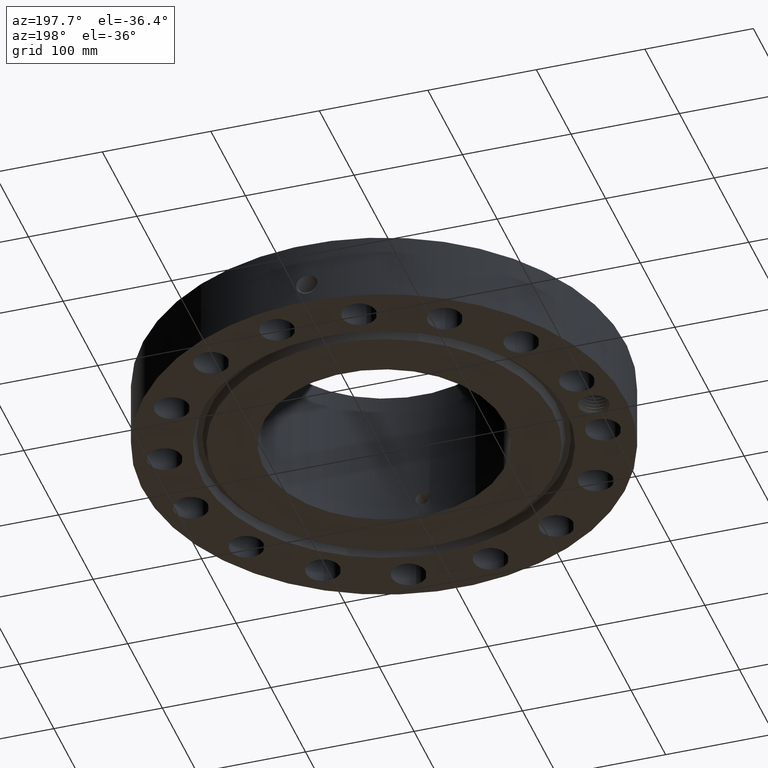
[diagram: clean part render]
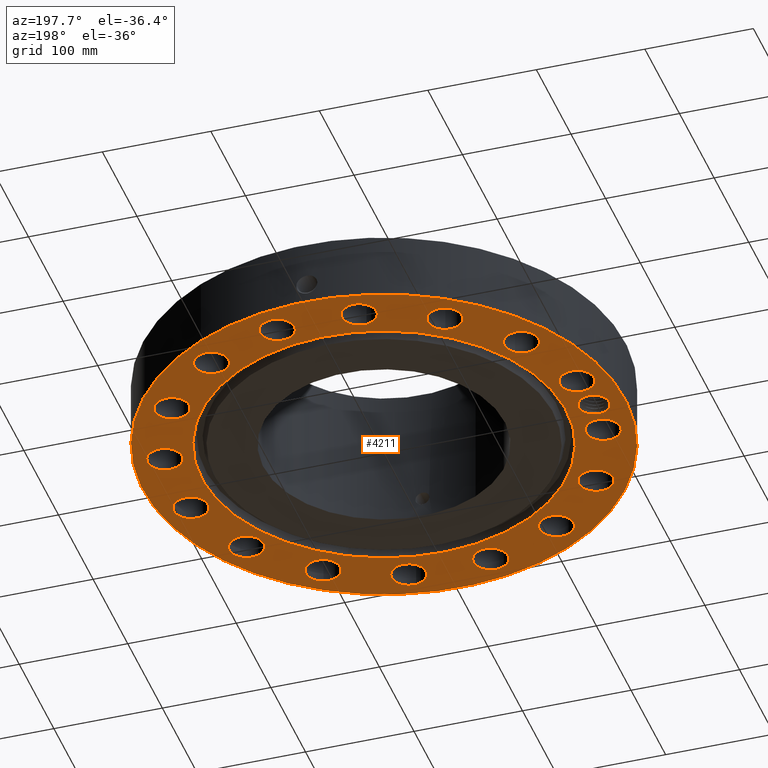
[diagram: same view with one face highlighted and labeled with its STEP entity id]
A machine part, auxiliary view. The second image highlights one B-rep face of the part: STEP entity #4211.
In plain terms, the highlighted planar face has unit normal (0, 0, -1).
Its self-contained STEP definition (entity closure, byte-faithful):
#598=AXIS2_PLACEMENT_3D('Plane Axis2P3D',#595,#596,#597) ;
#3275=AXIS2_PLACEMENT_3D('Circle Axis2P3D',#3273,#3274,$) ;
#3301=AXIS2_PLACEMENT_3D('Circle Axis2P3D',#3299,#3300,$) ;
#3849=AXIS2_PLACEMENT_3D('Circle Axis2P3D',#3847,#3848,$) ;
#3858=AXIS2_PLACEMENT_3D('Circle Axis2P3D',#3856,#3857,$) ;
#3867=AXIS2_PLACEMENT_3D('Circle Axis2P3D',#3865,#3866,$) ;
#3876=AXIS2_PLACEMENT_3D('Circle Axis2P3D',#3874,#3875,$) ;
#3921=AXIS2_PLACEMENT_3D('Circle Axis2P3D',#3919,#3920,$) ;
#3930=AXIS2_PLACEMENT_3D('Circle Axis2P3D',#3928,#3929,$) ;
#3939=AXIS2_PLACEMENT_3D('Circle Axis2P3D',#3937,#3938,$) ;
#3948=AXIS2_PLACEMENT_3D('Circle Axis2P3D',#3946,#3947,$) ;
#3957=AXIS2_PLACEMENT_3D('Circle Axis2P3D',#3955,#3956,$) ;
#3966=AXIS2_PLACEMENT_3D('Circle Axis2P3D',#3964,#3965,$) ;
#3975=AXIS2_PLACEMENT_3D('Circle Axis2P3D',#3973,#3974,$) ;
#3984=AXIS2_PLACEMENT_3D('Circle Axis2P3D',#3982,#3983,$) ;
#3993=AXIS2_PLACEMENT_3D('Circle Axis2P3D',#3991,#3992,$) ;
#4002=AXIS2_PLACEMENT_3D('Circle Axis2P3D',#4000,#4001,$) ;
#4011=AXIS2_PLACEMENT_3D('Circle Axis2P3D',#4009,#4010,$) ;
#4020=AXIS2_PLACEMENT_3D('Circle Axis2P3D',#4018,#4019,$) ;
#4029=AXIS2_PLACEMENT_3D('Circle Axis2P3D',#4027,#4028,$) ;
#4038=AXIS2_PLACEMENT_3D('Circle Axis2P3D',#4036,#4037,$) ;
#4047=AXIS2_PLACEMENT_3D('Circle Axis2P3D',#4045,#4046,$) ;
#4056=AXIS2_PLACEMENT_3D('Circle Axis2P3D',#4054,#4055,$) ;
#4065=AXIS2_PLACEMENT_3D('Circle Axis2P3D',#4063,#4064,$) ;
#4074=AXIS2_PLACEMENT_3D('Circle Axis2P3D',#4072,#4073,$) ;
#4083=AXIS2_PLACEMENT_3D('Circle Axis2P3D',#4081,#4082,$) ;
#4092=AXIS2_PLACEMENT_3D('Circle Axis2P3D',#4090,#4091,$) ;
#4101=AXIS2_PLACEMENT_3D('Circle Axis2P3D',#4099,#4100,$) ;
#4110=AXIS2_PLACEMENT_3D('Circle Axis2P3D',#4108,#4109,$) ;
#4119=AXIS2_PLACEMENT_3D('Circle Axis2P3D',#4117,#4118,$) ;
#4128=AXIS2_PLACEMENT_3D('Circle Axis2P3D',#4126,#4127,$) ;
#4137=AXIS2_PLACEMENT_3D('Circle Axis2P3D',#4135,#4136,$) ;
#4146=AXIS2_PLACEMENT_3D('Circle Axis2P3D',#4144,#4145,$) ;
#4155=AXIS2_PLACEMENT_3D('Circle Axis2P3D',#4153,#4154,$) ;
#4164=AXIS2_PLACEMENT_3D('Circle Axis2P3D',#4162,#4163,$) ;
#4173=AXIS2_PLACEMENT_3D('Circle Axis2P3D',#4171,#4172,$) ;
#4182=AXIS2_PLACEMENT_3D('Circle Axis2P3D',#4180,#4181,$) ;
#4191=AXIS2_PLACEMENT_3D('Circle Axis2P3D',#4189,#4190,$) ;
#4200=AXIS2_PLACEMENT_3D('Circle Axis2P3D',#4198,#4199,$) ;
#595=CARTESIAN_POINT('Axis2P3D Location',(0.,4.37500000002,0.)) ;
#3273=CARTESIAN_POINT('Axis2P3D Location',(0.,0.,0.)) ;
#3277=CARTESIAN_POINT('Vertex',(-3.16876309742,5.80038194284,0.)) ;
#3279=CARTESIAN_POINT('Vertex',(3.16876309742,-5.80038194284,0.)) ;
#3299=CARTESIAN_POINT('Axis2P3D Location',(0.,0.,0.)) ;
#3847=CARTESIAN_POINT('Axis2P3D Location',(0.,0.,0.)) ;
#3851=CARTESIAN_POINT('Vertex',(-4.1949734628,-7.67884741657,5.59482469102E-016)) ;
#3853=CARTESIAN_POINT('Vertex',(4.1949734628,7.67884741657,5.59482469102E-016)) ;
#3856=CARTESIAN_POINT('Axis2P3D Location',(0.,0.,0.)) ;
#3865=CARTESIAN_POINT('Axis2P3D Location',(-7.62500000003,-1.1189649382E-015,0.)) ;
#3869=CARTESIAN_POINT('Vertex',(-8.10960109071,0.264738782418,0.)) ;
#3871=CARTESIAN_POINT('Vertex',(-7.10347520258,0.181484780749,0.)) ;
#3874=CARTESIAN_POINT('Axis2P3D Location',(-7.62500000003,-1.1189649382E-015,0.)) ;
#3878=CARTESIAN_POINT('Vertex',(-7.16095699738,-0.299314102055,0.)) ;
#3882=CARTESIAN_POINT('Control Point',(-7.06645770177,-0.066619324831,0.)) ;
#3883=CARTESIAN_POINT('Control Point',(-7.07416557925,-0.114681631052,0.)) ;
#3884=CARTESIAN_POINT('Control Point',(-7.08705587024,-0.161797235867,0.)) ;
#3885=CARTESIAN_POINT('Control Point',(-7.1049895585,-0.207205787393,0.)) ;
#3886=CARTESIAN_POINT('Control Point',(-7.12870956018,-0.252179608873,0.)) ;
#3887=CARTESIAN_POINT('Control Point',(-7.15712673033,-0.293821482082,0.)) ;
#3888=CARTESIAN_POINT('Control Point',(-7.15839437758,-0.295659032487,0.)) ;
#3889=CARTESIAN_POINT('Control Point',(-7.15967114838,-0.297489925957,0.)) ;
#3890=CARTESIAN_POINT('Control Point',(-7.16095699738,-0.299314102055,0.)) ;
#3891=CARTESIAN_POINT('Vertex',(-7.06645770177,-0.0666193248303,8.74191357973E-018)) ;
#3895=CARTESIAN_POINT('Control Point',(-7.06645770177,-0.0666193248303,0.)) ;
#3896=CARTESIAN_POINT('Control Point',(-7.06541165184,-0.0532892877084,0.)) ;
#3897=CARTESIAN_POINT('Control Point',(-7.06476226065,-0.0399344907738,0.)) ;
#3898=CARTESIAN_POINT('Control Point',(-7.06451065516,-0.0265709294098,0.)) ;
#3899=CARTESIAN_POINT('Control Point',(-7.06465703212,-0.0132147927792,0.)) ;
#3900=CARTESIAN_POINT('Control Point',(-7.06520066568,0.000117592400793,0.)) ;
#3901=CARTESIAN_POINT('Vertex',(-7.06520066568,0.000117592400795,-8.74191357973E-018)) ;
#3905=CARTESIAN_POINT('Control Point',(-7.06520066568,0.000117592400795,0.)) ;
#3906=CARTESIAN_POINT('Control Point',(-7.066723145,0.0374557605854,0.)) ;
#3907=CARTESIAN_POINT('Control Point',(-7.07136135531,0.0746076307704,0.)) ;
#3908=CARTESIAN_POINT('Control Point',(-7.07909558712,0.111223558754,0.)) ;
#3909=CARTESIAN_POINT('Control Point',(-7.08984516472,0.146956936876,0.)) ;
#3910=CARTESIAN_POINT('Control Point',(-7.10347520258,0.181484780749,0.)) ;
#3919=CARTESIAN_POINT('Axis2P3D Location',(7.4784877631,-1.48756370538,0.)) ;
#3923=CARTESIAN_POINT('Vertex',(8.02697686429,-1.78720466701,2.79741234551E-016)) ;
#3925=CARTESIAN_POINT('Vertex',(6.92999866192,-1.18792274375,2.79741234551E-016)) ;
#3928=CARTESIAN_POINT('Axis2P3D Location',(7.4784877631,-1.48756370538,0.)) ;
#3937=CARTESIAN_POINT('Axis2P3D Location',(6.33995579383,-4.23622302679,0.)) ;
#3941=CARTESIAN_POINT('Vertex',(5.94788557112,-3.74949318338,0.)) ;
#3943=CARTESIAN_POINT('Vertex',(6.73202601655,-4.7229528702,2.79741234551E-016)) ;
#3946=CARTESIAN_POINT('Axis2P3D Location',(6.33995579383,-4.23622302679,0.)) ;
#3955=CARTESIAN_POINT('Axis2P3D Location',(4.23622302679,-6.33995579383,0.)) ;
#3959=CARTESIAN_POINT('Vertex',(4.06026081983,-5.74023727509,0.)) ;
#3961=CARTESIAN_POINT('Vertex',(4.41218523376,-6.93967431258,2.79741234551E-016)) ;
#3964=CARTESIAN_POINT('Axis2P3D Location',(4.23622302679,-6.33995579383,0.)) ;
#3973=CARTESIAN_POINT('Axis2P3D Location',(1.48756370538,-7.4784877631,0.)) ;
#3977=CARTESIAN_POINT('Vertex',(1.55449816507,-6.85708227704,0.)) ;
#3979=CARTESIAN_POINT('Vertex',(1.42062924568,-8.09989324917,2.79741234551E-016)) ;
#3982=CARTESIAN_POINT('Axis2P3D Location',(1.48756370538,-7.4784877631,0.)) ;
#3991=CARTESIAN_POINT('Axis2P3D Location',(-1.48756370538,-7.4784877631,0.)) ;
#3995=CARTESIAN_POINT('Vertex',(-1.18792274375,-6.92999866192,0.)) ;
#3997=CARTESIAN_POINT('Vertex',(-1.78720466701,-8.02697686429,2.79741234551E-016)) ;
#4000=CARTESIAN_POINT('Axis2P3D Location',(-1.48756370538,-7.4784877631,0.)) ;
#4009=CARTESIAN_POINT('Axis2P3D Location',(-4.23622302679,-6.33995579383,0.)) ;
#4013=CARTESIAN_POINT('Vertex',(-3.74949318338,-5.94788557112,0.)) ;
#4015=CARTESIAN_POINT('Vertex',(-4.7229528702,-6.73202601655,2.79741234551E-016)) ;
#4018=CARTESIAN_POINT('Axis2P3D Location',(-4.23622302679,-6.33995579383,0.)) ;
#4027=CARTESIAN_POINT('Axis2P3D Location',(-6.33995579383,-4.23622302679,0.)) ;
#4031=CARTESIAN_POINT('Vertex',(-5.74023727509,-4.06026081983,0.)) ;
#4033=CARTESIAN_POINT('Vertex',(-6.93967431258,-4.41218523376,2.79741234551E-016)) ;
#4036=CARTESIAN_POINT('Axis2P3D Location',(-6.33995579383,-4.23622302679,0.)) ;
#4045=CARTESIAN_POINT('Axis2P3D Location',(-7.4784877631,-1.48756370538,0.)) ;
#4049=CARTESIAN_POINT('Vertex',(-6.85708227704,-1.55449816507,0.)) ;
#4051=CARTESIAN_POINT('Vertex',(-8.09989324917,-1.42062924568,2.79741234551E-016)) ;
#4054=CARTESIAN_POINT('Axis2P3D Location',(-7.4784877631,-1.48756370538,0.)) ;
#4063=CARTESIAN_POINT('Axis2P3D Location',(-7.4784877631,1.48756370538,0.)) ;
#4067=CARTESIAN_POINT('Vertex',(-6.92999866192,1.18792274375,0.)) ;
#4069=CARTESIAN_POINT('Vertex',(-8.02697686429,1.78720466701,2.79741234551E-016)) ;
#4072=CARTESIAN_POINT('Axis2P3D Location',(-7.4784877631,1.48756370538,0.)) ;
#4081=CARTESIAN_POINT('Axis2P3D Location',(-6.33995579383,4.23622302679,0.)) ;
#4085=CARTESIAN_POINT('Vertex',(-5.94788557112,3.74949318338,0.)) ;
#4087=CARTESIAN_POINT('Vertex',(-6.73202601655,4.7229528702,2.79741234551E-016)) ;
#4090=CARTESIAN_POINT('Axis2P3D Location',(-6.33995579383,4.23622302679,0.)) ;
#4099=CARTESIAN_POINT('Axis2P3D Location',(-4.23622302679,6.33995579383,0.)) ;
#4103=CARTESIAN_POINT('Vertex',(-4.06026081983,5.74023727509,0.)) ;
#4105=CARTESIAN_POINT('Vertex',(-4.41218523376,6.93967431258,2.79741234551E-016)) ;
#4108=CARTESIAN_POINT('Axis2P3D Location',(-4.23622302679,6.33995579383,0.)) ;
#4117=CARTESIAN_POINT('Axis2P3D Location',(-1.48756370538,7.4784877631,0.)) ;
#4121=CARTESIAN_POINT('Vertex',(-1.55449816507,6.85708227704,0.)) ;
#4123=CARTESIAN_POINT('Vertex',(-1.42062924568,8.09989324917,2.79741234551E-016)) ;
#4126=CARTESIAN_POINT('Axis2P3D Location',(-1.48756370538,7.4784877631,0.)) ;
#4135=CARTESIAN_POINT('Axis2P3D Location',(1.48756370538,7.4784877631,0.)) ;
#4139=CARTESIAN_POINT('Vertex',(1.18792274375,6.92999866192,0.)) ;
#4141=CARTESIAN_POINT('Vertex',(1.78720466701,8.02697686429,2.79741234551E-016)) ;
#4144=CARTESIAN_POINT('Axis2P3D Location',(1.48756370538,7.4784877631,0.)) ;
#4153=CARTESIAN_POINT('Axis2P3D Location',(4.23622302679,6.33995579383,0.)) ;
#4157=CARTESIAN_POINT('Vertex',(3.74949318338,5.94788557112,0.)) ;
#4159=CARTESIAN_POINT('Vertex',(4.7229528702,6.73202601655,-1.95818864186E-015)) ;
#4162=CARTESIAN_POINT('Axis2P3D Location',(4.23622302679,6.33995579383,0.)) ;
#4171=CARTESIAN_POINT('Axis2P3D Location',(6.33995579383,4.23622302679,0.)) ;
#4175=CARTESIAN_POINT('Vertex',(5.74023727509,4.06026081983,0.)) ;
#4177=CARTESIAN_POINT('Vertex',(6.93967431258,4.41218523376,2.79741234551E-016)) ;
#4180=CARTESIAN_POINT('Axis2P3D Location',(6.33995579383,4.23622302679,0.)) ;
#4189=CARTESIAN_POINT('Axis2P3D Location',(7.4784877631,1.48756370538,0.)) ;
#4193=CARTESIAN_POINT('Vertex',(6.85708227704,1.55449816507,0.)) ;
#4195=CARTESIAN_POINT('Vertex',(8.09989324917,1.42062924568,2.79741234551E-016)) ;
#4198=CARTESIAN_POINT('Axis2P3D Location',(7.4784877631,1.48756370538,0.)) ;
#596=DIRECTION('Axis2P3D Direction',(0.,0.,-0.0393700787402)) ;
#597=DIRECTION('Axis2P3D XDirection',(0.0393700787402,0.,0.)) ;
#3274=DIRECTION('Axis2P3D Direction',(0.,0.,-0.0393700787402)) ;
#3300=DIRECTION('Axis2P3D Direction',(0.,0.,-0.0393700787402)) ;
#3848=DIRECTION('Axis2P3D Direction',(0.,0.,-0.0393700787402)) ;
#3857=DIRECTION('Axis2P3D Direction',(0.,0.,-0.0393700787402)) ;
#3866=DIRECTION('Axis2P3D Direction',(0.,0.,-0.0393700787402)) ;
#3875=DIRECTION('Axis2P3D Direction',(0.,0.,-0.0393700787402)) ;
#3920=DIRECTION('Axis2P3D Direction',(0.,0.,-0.0393700787402)) ;
#3929=DIRECTION('Axis2P3D Direction',(0.,0.,-0.0393700787402)) ;
#3938=DIRECTION('Axis2P3D Direction',(0.,0.,-0.0393700787402)) ;
#3947=DIRECTION('Axis2P3D Direction',(0.,0.,-0.0393700787402)) ;
#3956=DIRECTION('Axis2P3D Direction',(0.,0.,-0.0393700787402)) ;
#3965=DIRECTION('Axis2P3D Direction',(0.,0.,-0.0393700787402)) ;
#3974=DIRECTION('Axis2P3D Direction',(0.,0.,-0.0393700787402)) ;
#3983=DIRECTION('Axis2P3D Direction',(0.,0.,-0.0393700787402)) ;
#3992=DIRECTION('Axis2P3D Direction',(0.,0.,-0.0393700787402)) ;
#4001=DIRECTION('Axis2P3D Direction',(0.,0.,-0.0393700787402)) ;
#4010=DIRECTION('Axis2P3D Direction',(0.,0.,-0.0393700787402)) ;
#4019=DIRECTION('Axis2P3D Direction',(0.,0.,-0.0393700787402)) ;
#4028=DIRECTION('Axis2P3D Direction',(0.,0.,-0.0393700787402)) ;
#4037=DIRECTION('Axis2P3D Direction',(0.,0.,-0.0393700787402)) ;
#4046=DIRECTION('Axis2P3D Direction',(0.,0.,-0.0393700787402)) ;
#4055=DIRECTION('Axis2P3D Direction',(0.,0.,-0.0393700787402)) ;
#4064=DIRECTION('Axis2P3D Direction',(0.,0.,-0.0393700787402)) ;
#4073=DIRECTION('Axis2P3D Direction',(0.,0.,-0.0393700787402)) ;
#4082=DIRECTION('Axis2P3D Direction',(0.,0.,-0.0393700787402)) ;
#4091=DIRECTION('Axis2P3D Direction',(0.,0.,-0.0393700787402)) ;
#4100=DIRECTION('Axis2P3D Direction',(0.,0.,-0.0393700787402)) ;
#4109=DIRECTION('Axis2P3D Direction',(0.,0.,-0.0393700787402)) ;
#4118=DIRECTION('Axis2P3D Direction',(0.,0.,-0.0393700787402)) ;
#4127=DIRECTION('Axis2P3D Direction',(0.,0.,-0.0393700787402)) ;
#4136=DIRECTION('Axis2P3D Direction',(0.,0.,-0.0393700787402)) ;
#4145=DIRECTION('Axis2P3D Direction',(0.,0.,-0.0393700787402)) ;
#4154=DIRECTION('Axis2P3D Direction',(0.,0.,-0.0393700787402)) ;
#4163=DIRECTION('Axis2P3D Direction',(0.,0.,-0.0393700787402)) ;
#4172=DIRECTION('Axis2P3D Direction',(0.,0.,-0.0393700787402)) ;
#4181=DIRECTION('Axis2P3D Direction',(0.,0.,-0.0393700787402)) ;
#4190=DIRECTION('Axis2P3D Direction',(0.,0.,-0.0393700787402)) ;
#4199=DIRECTION('Axis2P3D Direction',(0.,0.,-0.0393700787402)) ;
#3862=ORIENTED_EDGE('',*,*,#3855,.T.) ;
#3863=ORIENTED_EDGE('',*,*,#3860,.T.) ;
#3913=ORIENTED_EDGE('',*,*,#3873,.F.) ;
#3914=ORIENTED_EDGE('',*,*,#3880,.F.) ;
#3915=ORIENTED_EDGE('',*,*,#3893,.F.) ;
#3916=ORIENTED_EDGE('',*,*,#3903,.T.) ;
#3917=ORIENTED_EDGE('',*,*,#3911,.T.) ;
#3934=ORIENTED_EDGE('',*,*,#3927,.F.) ;
#3935=ORIENTED_EDGE('',*,*,#3932,.F.) ;
#3952=ORIENTED_EDGE('',*,*,#3945,.F.) ;
#3953=ORIENTED_EDGE('',*,*,#3950,.F.) ;
#3970=ORIENTED_EDGE('',*,*,#3963,.F.) ;
#3971=ORIENTED_EDGE('',*,*,#3968,.F.) ;
#3988=ORIENTED_EDGE('',*,*,#3981,.F.) ;
#3989=ORIENTED_EDGE('',*,*,#3986,.F.) ;
#4006=ORIENTED_EDGE('',*,*,#3999,.F.) ;
#4007=ORIENTED_EDGE('',*,*,#4004,.F.) ;
#4024=ORIENTED_EDGE('',*,*,#4017,.F.) ;
#4025=ORIENTED_EDGE('',*,*,#4022,.F.) ;
#4042=ORIENTED_EDGE('',*,*,#4035,.F.) ;
#4043=ORIENTED_EDGE('',*,*,#4040,.F.) ;
#4060=ORIENTED_EDGE('',*,*,#4053,.F.) ;
#4061=ORIENTED_EDGE('',*,*,#4058,.F.) ;
#4078=ORIENTED_EDGE('',*,*,#4071,.F.) ;
#4079=ORIENTED_EDGE('',*,*,#4076,.F.) ;
#4096=ORIENTED_EDGE('',*,*,#4089,.F.) ;
#4097=ORIENTED_EDGE('',*,*,#4094,.F.) ;
#4114=ORIENTED_EDGE('',*,*,#4107,.F.) ;
#4115=ORIENTED_EDGE('',*,*,#4112,.F.) ;
#4132=ORIENTED_EDGE('',*,*,#4125,.F.) ;
#4133=ORIENTED_EDGE('',*,*,#4130,.F.) ;
#4150=ORIENTED_EDGE('',*,*,#4143,.F.) ;
#4151=ORIENTED_EDGE('',*,*,#4148,.F.) ;
#4168=ORIENTED_EDGE('',*,*,#4161,.F.) ;
#4169=ORIENTED_EDGE('',*,*,#4166,.F.) ;
#4186=ORIENTED_EDGE('',*,*,#4179,.F.) ;
#4187=ORIENTED_EDGE('',*,*,#4184,.F.) ;
#4204=ORIENTED_EDGE('',*,*,#4197,.F.) ;
#4205=ORIENTED_EDGE('',*,*,#4202,.F.) ;
#4208=ORIENTED_EDGE('',*,*,#3303,.F.) ;
#4209=ORIENTED_EDGE('',*,*,#3281,.F.) ;
#3918=FACE_BOUND('',#3912,.T.) ;
#3936=FACE_BOUND('',#3933,.T.) ;
#3954=FACE_BOUND('',#3951,.T.) ;
#3972=FACE_BOUND('',#3969,.T.) ;
#3990=FACE_BOUND('',#3987,.T.) ;
#4008=FACE_BOUND('',#4005,.T.) ;
#4026=FACE_BOUND('',#4023,.T.) ;
#4044=FACE_BOUND('',#4041,.T.) ;
#4062=FACE_BOUND('',#4059,.T.) ;
#4080=FACE_BOUND('',#4077,.T.) ;
#4098=FACE_BOUND('',#4095,.T.) ;
#4116=FACE_BOUND('',#4113,.T.) ;
#4134=FACE_BOUND('',#4131,.T.) ;
#4152=FACE_BOUND('',#4149,.T.) ;
#4170=FACE_BOUND('',#4167,.T.) ;
#4188=FACE_BOUND('',#4185,.T.) ;
#4206=FACE_BOUND('',#4203,.T.) ;
#4210=FACE_BOUND('',#4207,.T.) ;
#4211=ADVANCED_FACE('PartBody',(#3864,#3918,#3936,#3954,#3972,#3990,#4008,#4026,#4044,#4062,#4080,#4098,#4116,#4134,#4152,#4170,#4188,#4206,#4210),#599,.T.) ;
#3881=B_SPLINE_CURVE_WITH_KNOTS('',5,(#3882,#3883,#3884,#3885,#3886,#3887,#3888,#3889,#3890),.UNSPECIFIED.,.F.,.U.,(6,3,6),(0.,8.48152375621,8.87454047548),.UNSPECIFIED.) ;
#3894=B_SPLINE_CURVE_WITH_KNOTS('',5,(#3895,#3896,#3897,#3898,#3899,#3900),.UNSPECIFIED.,.F.,.U.,(6,6),(0.,2.32980021669),.UNSPECIFIED.) ;
#3904=B_SPLINE_CURVE_WITH_KNOTS('',5,(#3905,#3906,#3907,#3908,#3909,#3910),.UNSPECIFIED.,.F.,.U.,(6,6),(0.,6.52474940924),.UNSPECIFIED.) ;
#3276=CIRCLE('generated circle',#3275,6.60950000003) ;
#3302=CIRCLE('generated circle',#3301,6.60950000003) ;
#3850=CIRCLE('generated circle',#3849,8.75000000003) ;
#3859=CIRCLE('generated circle',#3858,8.75000000003) ;
#3868=CIRCLE('generated circle',#3867,0.552200000002) ;
#3877=CIRCLE('generated circle',#3876,0.552200000002) ;
#3922=CIRCLE('generated circle',#3921,0.625000000002) ;
#3931=CIRCLE('generated circle',#3930,0.625000000002) ;
#3940=CIRCLE('generated circle',#3939,0.625000000003) ;
#3949=CIRCLE('generated circle',#3948,0.625000000003) ;
#3958=CIRCLE('generated circle',#3957,0.625000000002) ;
#3967=CIRCLE('generated circle',#3966,0.625000000002) ;
#3976=CIRCLE('generated circle',#3975,0.625000000003) ;
#3985=CIRCLE('generated circle',#3984,0.625000000003) ;
#3994=CIRCLE('generated circle',#3993,0.625000000002) ;
#4003=CIRCLE('generated circle',#4002,0.625000000002) ;
#4012=CIRCLE('generated circle',#4011,0.625000000003) ;
#4021=CIRCLE('generated circle',#4020,0.625000000003) ;
#4030=CIRCLE('generated circle',#4029,0.625000000002) ;
#4039=CIRCLE('generated circle',#4038,0.625000000002) ;
#4048=CIRCLE('generated circle',#4047,0.625000000003) ;
#4057=CIRCLE('generated circle',#4056,0.625000000003) ;
#4066=CIRCLE('generated circle',#4065,0.625000000002) ;
#4075=CIRCLE('generated circle',#4074,0.625000000002) ;
#4084=CIRCLE('generated circle',#4083,0.625000000003) ;
#4093=CIRCLE('generated circle',#4092,0.625000000003) ;
#4102=CIRCLE('generated circle',#4101,0.625000000002) ;
#4111=CIRCLE('generated circle',#4110,0.625000000002) ;
#4120=CIRCLE('generated circle',#4119,0.625000000003) ;
#4129=CIRCLE('generated circle',#4128,0.625000000003) ;
#4138=CIRCLE('generated circle',#4137,0.625000000002) ;
#4147=CIRCLE('generated circle',#4146,0.625000000002) ;
#4156=CIRCLE('generated circle',#4155,0.625000000003) ;
#4165=CIRCLE('generated circle',#4164,0.625000000003) ;
#4174=CIRCLE('generated circle',#4173,0.625000000003) ;
#4183=CIRCLE('generated circle',#4182,0.625000000003) ;
#4192=CIRCLE('generated circle',#4191,0.625000000003) ;
#4201=CIRCLE('generated circle',#4200,0.625000000003) ;
#3281=EDGE_CURVE('',#3278,#3280,#3276,.T.) ;
#3303=EDGE_CURVE('',#3280,#3278,#3302,.T.) ;
#3855=EDGE_CURVE('',#3852,#3854,#3850,.T.) ;
#3860=EDGE_CURVE('',#3854,#3852,#3859,.T.) ;
#3873=EDGE_CURVE('',#3870,#3872,#3868,.T.) ;
#3880=EDGE_CURVE('',#3879,#3870,#3877,.T.) ;
#3893=EDGE_CURVE('',#3892,#3879,#3881,.T.) ;
#3903=EDGE_CURVE('',#3892,#3902,#3894,.T.) ;
#3911=EDGE_CURVE('',#3902,#3872,#3904,.T.) ;
#3927=EDGE_CURVE('',#3924,#3926,#3922,.T.) ;
#3932=EDGE_CURVE('',#3926,#3924,#3931,.T.) ;
#3945=EDGE_CURVE('',#3942,#3944,#3940,.T.) ;
#3950=EDGE_CURVE('',#3944,#3942,#3949,.T.) ;
#3963=EDGE_CURVE('',#3960,#3962,#3958,.T.) ;
#3968=EDGE_CURVE('',#3962,#3960,#3967,.T.) ;
#3981=EDGE_CURVE('',#3978,#3980,#3976,.T.) ;
#3986=EDGE_CURVE('',#3980,#3978,#3985,.T.) ;
#3999=EDGE_CURVE('',#3996,#3998,#3994,.T.) ;
#4004=EDGE_CURVE('',#3998,#3996,#4003,.T.) ;
#4017=EDGE_CURVE('',#4014,#4016,#4012,.T.) ;
#4022=EDGE_CURVE('',#4016,#4014,#4021,.T.) ;
#4035=EDGE_CURVE('',#4032,#4034,#4030,.T.) ;
#4040=EDGE_CURVE('',#4034,#4032,#4039,.T.) ;
#4053=EDGE_CURVE('',#4050,#4052,#4048,.T.) ;
#4058=EDGE_CURVE('',#4052,#4050,#4057,.T.) ;
#4071=EDGE_CURVE('',#4068,#4070,#4066,.T.) ;
#4076=EDGE_CURVE('',#4070,#4068,#4075,.T.) ;
#4089=EDGE_CURVE('',#4086,#4088,#4084,.T.) ;
#4094=EDGE_CURVE('',#4088,#4086,#4093,.T.) ;
#4107=EDGE_CURVE('',#4104,#4106,#4102,.T.) ;
#4112=EDGE_CURVE('',#4106,#4104,#4111,.T.) ;
#4125=EDGE_CURVE('',#4122,#4124,#4120,.T.) ;
#4130=EDGE_CURVE('',#4124,#4122,#4129,.T.) ;
#4143=EDGE_CURVE('',#4140,#4142,#4138,.T.) ;
#4148=EDGE_CURVE('',#4142,#4140,#4147,.T.) ;
#4161=EDGE_CURVE('',#4158,#4160,#4156,.T.) ;
#4166=EDGE_CURVE('',#4160,#4158,#4165,.T.) ;
#4179=EDGE_CURVE('',#4176,#4178,#4174,.T.) ;
#4184=EDGE_CURVE('',#4178,#4176,#4183,.T.) ;
#4197=EDGE_CURVE('',#4194,#4196,#4192,.T.) ;
#4202=EDGE_CURVE('',#4196,#4194,#4201,.T.) ;
#3861=EDGE_LOOP('',(#3862,#3863)) ;
#3912=EDGE_LOOP('',(#3913,#3914,#3915,#3916,#3917)) ;
#3933=EDGE_LOOP('',(#3934,#3935)) ;
#3951=EDGE_LOOP('',(#3952,#3953)) ;
#3969=EDGE_LOOP('',(#3970,#3971)) ;
#3987=EDGE_LOOP('',(#3988,#3989)) ;
#4005=EDGE_LOOP('',(#4006,#4007)) ;
#4023=EDGE_LOOP('',(#4024,#4025)) ;
#4041=EDGE_LOOP('',(#4042,#4043)) ;
#4059=EDGE_LOOP('',(#4060,#4061)) ;
#4077=EDGE_LOOP('',(#4078,#4079)) ;
#4095=EDGE_LOOP('',(#4096,#4097)) ;
#4113=EDGE_LOOP('',(#4114,#4115)) ;
#4131=EDGE_LOOP('',(#4132,#4133)) ;
#4149=EDGE_LOOP('',(#4150,#4151)) ;
#4167=EDGE_LOOP('',(#4168,#4169)) ;
#4185=EDGE_LOOP('',(#4186,#4187)) ;
#4203=EDGE_LOOP('',(#4204,#4205)) ;
#4207=EDGE_LOOP('',(#4208,#4209)) ;
#3864=FACE_OUTER_BOUND('',#3861,.T.) ;
#599=PLANE('',#598) ;
#3278=VERTEX_POINT('',#3277) ;
#3280=VERTEX_POINT('',#3279) ;
#3852=VERTEX_POINT('',#3851) ;
#3854=VERTEX_POINT('',#3853) ;
#3870=VERTEX_POINT('',#3869) ;
#3872=VERTEX_POINT('',#3871) ;
#3879=VERTEX_POINT('',#3878) ;
#3892=VERTEX_POINT('',#3891) ;
#3902=VERTEX_POINT('',#3901) ;
#3924=VERTEX_POINT('',#3923) ;
#3926=VERTEX_POINT('',#3925) ;
#3942=VERTEX_POINT('',#3941) ;
#3944=VERTEX_POINT('',#3943) ;
#3960=VERTEX_POINT('',#3959) ;
#3962=VERTEX_POINT('',#3961) ;
#3978=VERTEX_POINT('',#3977) ;
#3980=VERTEX_POINT('',#3979) ;
#3996=VERTEX_POINT('',#3995) ;
#3998=VERTEX_POINT('',#3997) ;
#4014=VERTEX_POINT('',#4013) ;
#4016=VERTEX_POINT('',#4015) ;
#4032=VERTEX_POINT('',#4031) ;
#4034=VERTEX_POINT('',#4033) ;
#4050=VERTEX_POINT('',#4049) ;
#4052=VERTEX_POINT('',#4051) ;
#4068=VERTEX_POINT('',#4067) ;
#4070=VERTEX_POINT('',#4069) ;
#4086=VERTEX_POINT('',#4085) ;
#4088=VERTEX_POINT('',#4087) ;
#4104=VERTEX_POINT('',#4103) ;
#4106=VERTEX_POINT('',#4105) ;
#4122=VERTEX_POINT('',#4121) ;
#4124=VERTEX_POINT('',#4123) ;
#4140=VERTEX_POINT('',#4139) ;
#4142=VERTEX_POINT('',#4141) ;
#4158=VERTEX_POINT('',#4157) ;
#4160=VERTEX_POINT('',#4159) ;
#4176=VERTEX_POINT('',#4175) ;
#4178=VERTEX_POINT('',#4177) ;
#4194=VERTEX_POINT('',#4193) ;
#4196=VERTEX_POINT('',#4195) ;